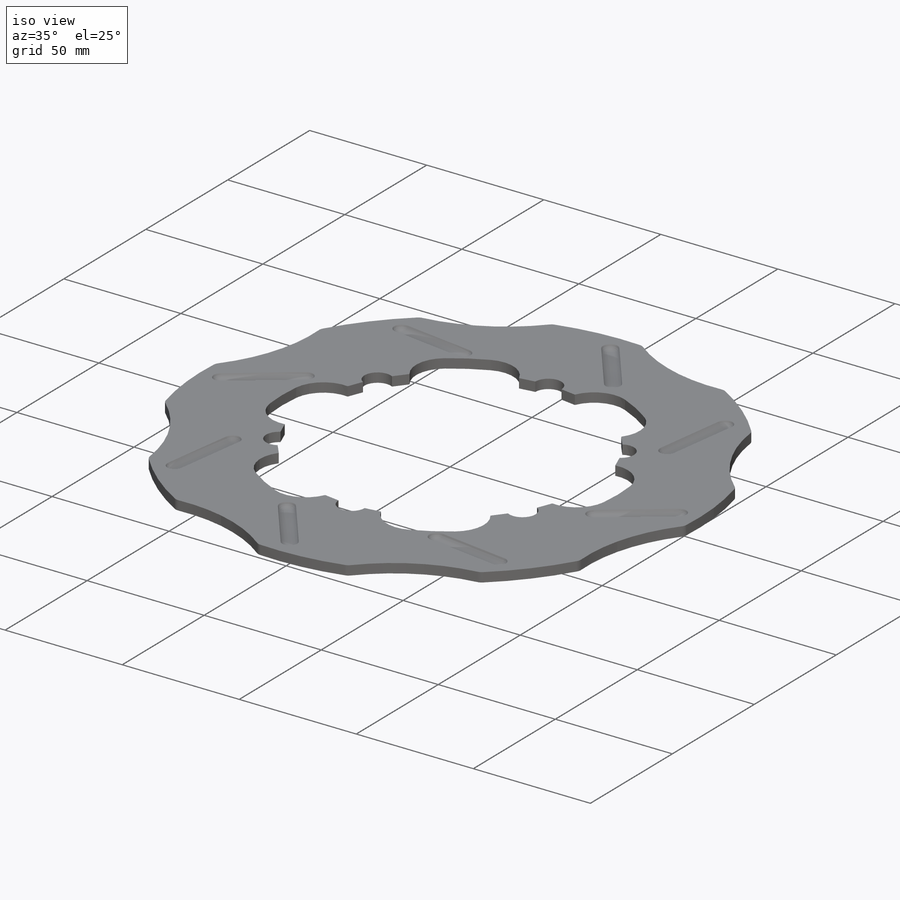
[diagram: iso view]
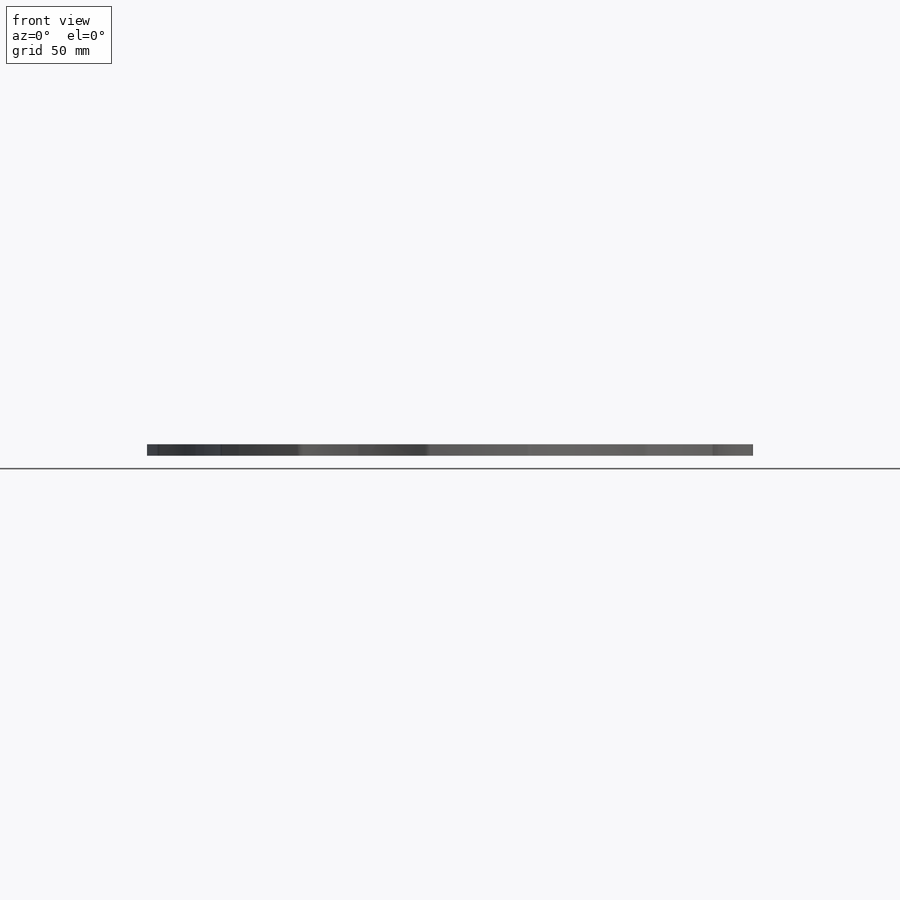
[diagram: front view]
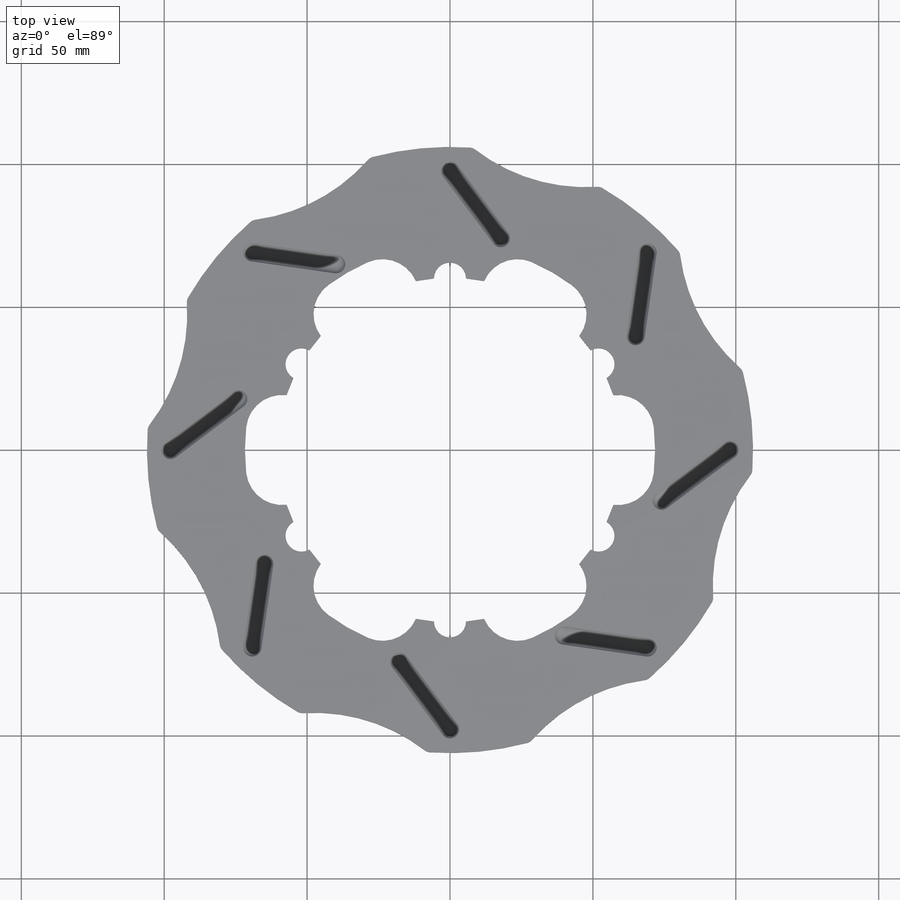
[diagram: top view]
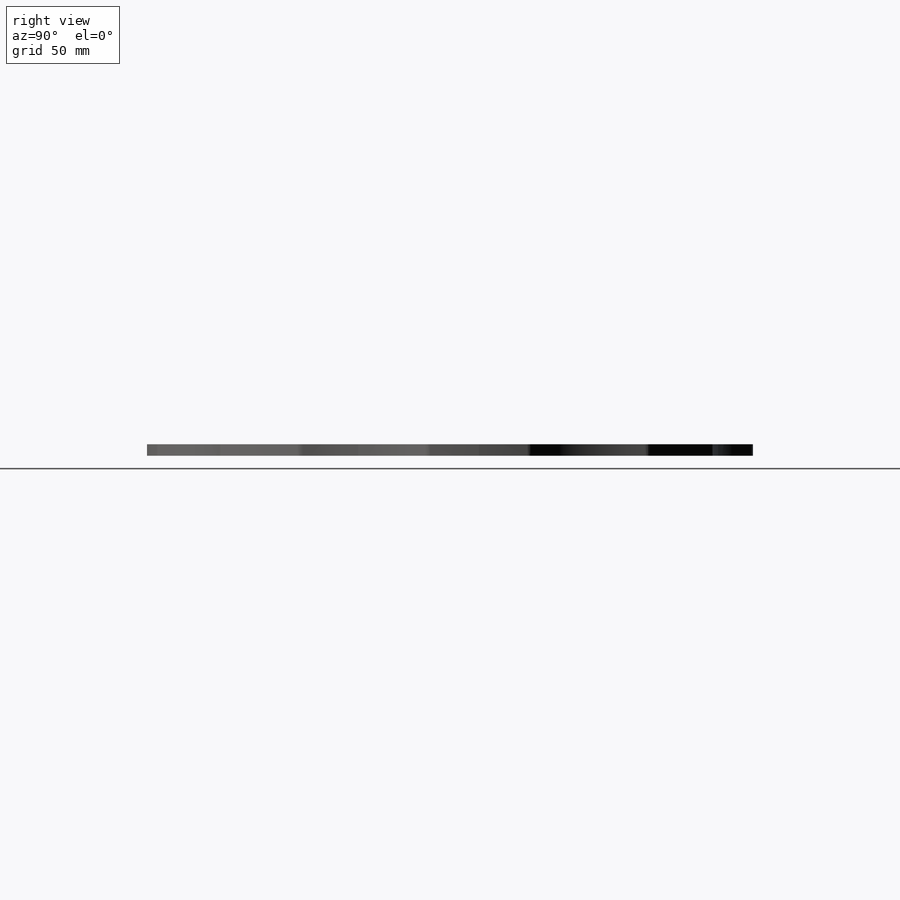
[diagram: right view]
SOLIDWORKS PART (.sldprt)
format: sldprt  version: not decoded by parser v0  size: 784,896 bytes
history: native  units: mm
features: sketch x8, cut_extrude x4, fillet x3, extrude x2, material x1, pattern_circular x1 (+11 scaffold rows collapsed)
feature tree (30):
  scaffold x11  (default folders/planes/origin — collapsed)
  material  "AISI 1020"
  sketch  "Sketch1"  dims[c1.D1=208.788mm c1.D3=11.2mm c2.D1=73.17mm c2.D3=73.17mm c2.D4=210.856mm c3.D1=212.09mm c3.D4=11.2mm c3.D8=11.2mm c3.D9=11.2mm c3.D10=11.2mm c3.D11=11.2mm c3.D2=60.0mm c4.D4=17.55mm c4.D5=32.258mm c4.D2=60.0mm c4.D3=32.258mm c5.D4=~17.54886mm c5.D5=~17.54886mm c6.D4=11.9507mm c6.D5=11.9507mm c6.D6=11.9507mm c6.D7=11.9507mm c6.D2=34.29mm]
  extrude  "Thickness"  Depth=4mm
  sketch  "Sketch7"  dims[D1=~119.99976mm D2=~11.19886mm D3=11.9507mm]
  extrude  "Boss-Extrude1"  [1 undecoded]
  sketch  "Sketch2"  dims[D1=120.5992mm]
  cut_extrude  "Mounting Tabs"  Depth=50.292mm
  sketch  "Sketch3"  dims[D1=152.4mm D2=195.58mm D3=6.35mm D4=6.35mm D5=17.78mm D6=8.0]
  cut_extrude  "Slot Front"  Depth=1.778mm
  sketch  "Sketch5"  dims[D1=6.35mm D2=6.35mm D3=17.78mm D4=8.0]
  cut_extrude  "Slot Back"  Depth=1.778mm
  sketch  "Sketch6"  dims[c1.D2=127.0mm c1.D1=~126.242673mm c2.D1=17.0deg c2.D3=162.56mm c2.D4=8.0]
  cut_extrude  "Scallops"  [1 undecoded]
  fillet  "Scallop Fillet"  Radius=3.175mm
  fillet  "Slot Fillet"  Radius=3.048mm
  fillet  "Mount Fillet"  Radius=12.7mm
  pattern_circular  "CirPattern1"  Count=6 Angle=360deg
  sketch  "SWEPT AREA"  dims[D1=143.0782mm D2=208.661mm]
  sketch  "LaserCutSketch"  dims[D1=0.0mm]
decode coverage: 16 of 18 modeling features carry decoded parameters
note: ~ marks probable driven/reference dimensions
note: 2 parameter values undecoded
note: suppression state not decoded; provenance and decode notes live in map.json
